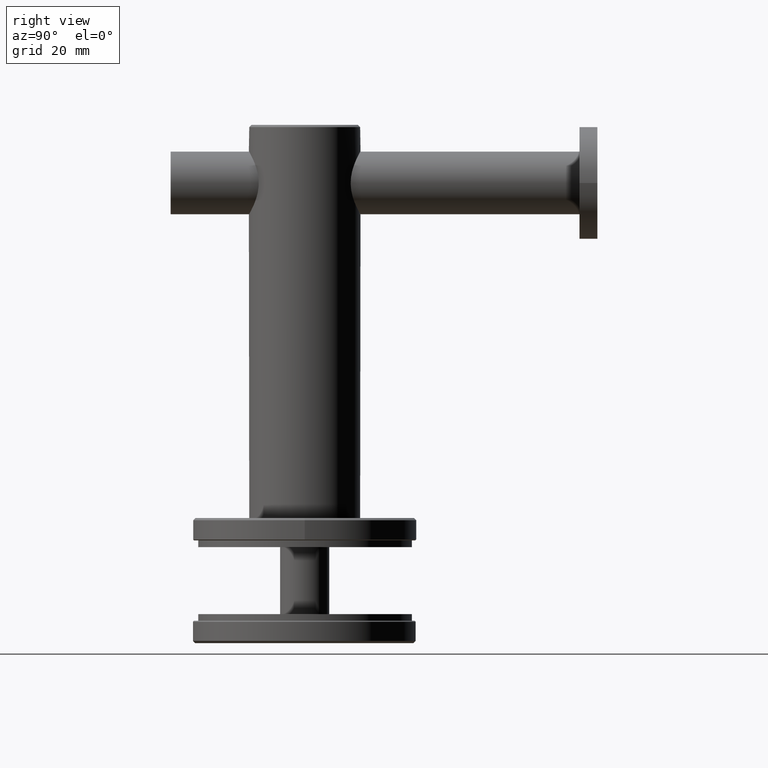
[diagram: clean part render]
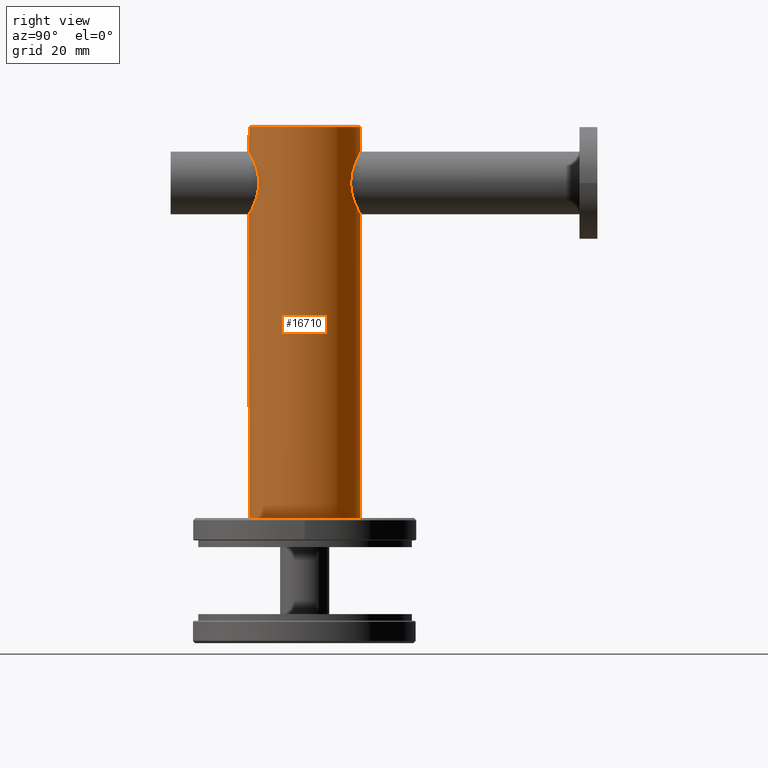
[diagram: same view with one face highlighted and labeled with its STEP entity id]
A machine part, right view. The second image highlights one B-rep face of the part: STEP entity #16710.
In plain terms, the highlighted cylindrical surface (bore or boss wall) has radius 12.5 mm, axis along (0, 0, -1).
Its self-contained STEP definition (entity closure, byte-faithful):
#28 = CARTESIAN_POINT ( 'NONE',  ( 3.184456486232198900, 12.09553283554605800, 86.36278829441432900 ) ) ;
#88 = CARTESIAN_POINT ( 'NONE',  ( -12.43578802701552600, 1.303998609354338100, 77.80885604804187500 ) ) ;
#129 = CARTESIAN_POINT ( 'NONE',  ( 3.169272846726294300, -12.09956292198341800, 73.62956972911712200 ) ) ;
#158 = CARTESIAN_POINT ( 'NONE',  ( -12.44824318700079900, 1.147204252107365500, 82.25440359961696400 ) ) ;
#163 = CARTESIAN_POINT ( 'NONE',  ( -1.853286471380417800, 12.37060092623068500, 73.12994769052774300 ) ) ;
#196 = CARTESIAN_POINT ( 'NONE',  ( -1.889983813216502100, -12.35839596780823000, 73.15212593721565800 ) ) ;
#223 = CARTESIAN_POINT ( 'NONE',  ( 6.460840631977733400, 10.70133156741372800, 77.04687974980271300 ) ) ;
#291 = CARTESIAN_POINT ( 'NONE',  ( 3.203955867126915700, 12.09038730092472500, 73.64696696464356800 ) ) ;
#298 = FACE_OUTER_BOUND ( 'NONE', #1793, .T. ) ;
#325 = CARTESIAN_POINT ( 'NONE',  ( 0.9563567616744069700, -12.46562845003936800, 87.03933869854878900 ) ) ;
#353 = CARTESIAN_POINT ( 'NONE',  ( -6.460839592141698300, 10.70133331722410100, 82.95314374847103500 ) ) ;
#417 = CARTESIAN_POINT ( 'NONE',  ( -6.859185124894941600, 10.45057995091122500, 78.10713310867888000 ) ) ;
#496 = VERTEX_POINT ( 'NONE', #5854 ) ;
#757 = VERTEX_POINT ( 'NONE', #1304 ) ;
#979 = ORIENTED_EDGE ( 'NONE', *, *, #18132, .F. ) ;
#1190 = CARTESIAN_POINT ( 'NONE',  ( -12.49652008926264600, -0.3384427619508525400, 82.49347104751193200 ) ) ;
#1262 = CARTESIAN_POINT ( 'NONE',  ( -12.31433411284287900, -2.146433170931300300, 78.60532221454907600 ) ) ;
#1304 = CARTESIAN_POINT ( 'NONE',  ( 0.0000000000000000000, -12.49999999999999500, 87.09999999999999400 ) ) ;
#1330 = CARTESIAN_POINT ( 'NONE',  ( -12.44835718420770700, -1.145758669755629200, 82.25498875822646000 ) ) ;
#1402 = CARTESIAN_POINT ( 'NONE',  ( -12.23046837691340200, -2.581790712145600100, 80.00150123447871000 ) ) ;
#1523 = CARTESIAN_POINT ( 'NONE',  ( -6.360965238899706400, -10.76253835036409600, 83.18740120694651800 ) ) ;
#1555 = CARTESIAN_POINT ( 'NONE',  ( -12.23401056673671600, 2.565178420134417900, 79.67113078207114500 ) ) ;
#1599 = CARTESIAN_POINT ( 'NONE',  ( 6.138928330866495000, -10.89252251643727800, 76.40402217390261800 ) ) ;
#1626 = CARTESIAN_POINT ( 'NONE',  ( -12.24777739071416100, 2.498620391668170600, 79.34686524170126600 ) ) ;
#1664 = CARTESIAN_POINT ( 'NONE',  ( -5.625106057332109400, -11.16396342920787900, 84.33819548883795400 ) ) ;
#1694 = CARTESIAN_POINT ( 'NONE',  ( -12.23048294247052500, 2.581721712141908500, 80.32833862261412600 ) ) ;
#1722 = AXIS2_PLACEMENT_3D ( 'NONE', #5611, #18393, #17145 ) ;
#1732 = CARTESIAN_POINT ( 'NONE',  ( -5.335835450798519700, -11.30507663162559200, 84.68941556034548100 ) ) ;
#1766 = CARTESIAN_POINT ( 'NONE',  ( -4.167489591241087000, 11.78650720189665800, 85.75274438239226500 ) ) ;
#1776 = VERTEX_POINT ( 'NONE', #16968 ) ;
#1793 = EDGE_LOOP ( 'NONE', ( #16243 ) ) ;
#1803 = CARTESIAN_POINT ( 'NONE',  ( 2.310420913900503400, -12.29250456500398400, 73.27031743588233300 ) ) ;
#1833 = CARTESIAN_POINT ( 'NONE',  ( -7.037625937007599800, 10.33066797645802700, 79.03146245814458800 ) ) ;
#1864 = CARTESIAN_POINT ( 'NONE',  ( 4.167489591241089600, -11.78650720189666100, 85.75274438239227900 ) ) ;
#1896 = CARTESIAN_POINT ( 'NONE',  ( -6.361636014312697500, 10.76083024765457300, 83.16111218485477300 ) ) ;
#1930 = CARTESIAN_POINT ( 'NONE',  ( 4.703235346696010800, -11.58298069406304400, 85.32372804176564800 ) ) ;
#1960 = CARTESIAN_POINT ( 'NONE',  ( -5.328153462786819000, 11.30871037991073000, 75.30182161819441000 ) ) ;
#2027 = CARTESIAN_POINT ( 'NONE',  ( -6.023856308707189900, 10.95372243787466000, 83.76503293258986100 ) ) ;
#2136 = CARTESIAN_POINT ( 'NONE',  ( 6.718676569906835800, -10.54116355741437700, 82.30751951410998400 ) ) ;
#2181 = B_SPLINE_CURVE_WITH_KNOTS ( 'NONE', 3,
 ( #15893, #4362, #1190, #20571, #9275, #7818, #14135, #1330, #14208, #20499, #4573, #12431, #12571, #15815, #12497, #10890, #19007, #9423, #11027, #20643, #14058, #1402, #4644, #9142, #20355, #6005, #2951, #6149, #12642, #3027, #1262, #17332, #6078, #7894, #14274, #17260, #7619, #17475, #10755, #18933, #2742, #18864, #7751, #15620, #17194, #20424, #18792, #10826, #2820, #4429, #7685, #11175, #88, #5001, #11243, #3307, #3372, #9707, #12930, #12713, #20780, #16036, #1626, #19088, #1555, #4797, #6435, #1694, #12858, #14560, #12997, #17688, #9769, #9566, #11373, #3236, #4935, #3163, #14491, #20716, #158, #3096, #12785, #16239, #4717 ),
 .UNSPECIFIED., .T., .F.,
 ( 4, 3, 3, 3, 3, 3, 3, 3, 3, 3, 3, 3, 3, 3, 3, 3, 3, 3, 3, 3, 3, 3, 3, 3, 3, 3, 3, 3, 4 ),
 ( 0.0000000000000000000, 0.03571428571428571200, 0.07142857142857142500, 0.1071428571428571400, 0.1428571428571428500, 0.1785714285714285800, 0.2142857142857142700, 0.2500000000000000000, 0.2857142857142857000, 0.3214285714285714500, 0.3571428571428571500, 0.3928571428571428500, 0.4285714285714285500, 0.4642857142857143000, 0.5000000000000000000, 0.5357142857142857000, 0.5714285714285714000, 0.6071428571428571000, 0.6428571428571429000, 0.6785714285714286000, 0.7142857142857143000, 0.7500000000000000000, 0.7857142857142857000, 0.8214285714285714000, 0.8571428571428571000, 0.8928571428571429000, 0.9285714285714286000, 0.9642857142857143000, 1.000000000000000000 ),
 .UNSPECIFIED. ) ;
#2440 = CARTESIAN_POINT ( 'NONE',  ( -12.50000000000000000, 0.0000000000000000000, 92.49999999999992900 ) ) ;
#2446 = ORIENTED_EDGE ( 'NONE', *, *, #15760, .F. ) ;
#2742 = CARTESIAN_POINT ( 'NONE',  ( -12.47310918696619600, -0.8342181446663503600, 77.61927697057785700 ) ) ;
#2820 = CARTESIAN_POINT ( 'NONE',  ( -12.48971849393115700, 0.5068845453888349800, 77.53913938316971200 ) ) ;
#2951 = CARTESIAN_POINT ( 'NONE',  ( -12.25771000552910000, -2.450085953040250800, 79.19168423599231200 ) ) ;
#3027 = CARTESIAN_POINT ( 'NONE',  ( -12.29805507851957800, -2.239827864232924300, 78.74114934669363200 ) ) ;
#3030 = CARTESIAN_POINT ( 'NONE',  ( 4.704088486941905100, 11.58634715858313200, 85.33724871396501000 ) ) ;
#3096 = CARTESIAN_POINT ( 'NONE',  ( -12.46072599656021800, 0.9901048624506362300, 82.31782010406990900 ) ) ;
#3138 = CARTESIAN_POINT ( 'NONE',  ( -6.868284871124011200, -10.44457344749546500, 78.14038418871585600 ) ) ;
#3163 = CARTESIAN_POINT ( 'NONE',  ( -12.40127992458766700, 1.574179696255175700, 81.99592039492698300 ) ) ;
#3206 = CARTESIAN_POINT ( 'NONE',  ( -5.762524363847187900, -11.09342687341460000, 84.15394023452493900 ) ) ;
#3236 = CARTESIAN_POINT ( 'NONE',  ( -12.36594733669262100, 1.825745454915521400, 81.77449007377433100 ) ) ;
#3307 = CARTESIAN_POINT ( 'NONE',  ( -12.34819437726394000, 1.945941703955530900, 78.34245214326334400 ) ) ;
#3314 = CARTESIAN_POINT ( 'NONE',  ( 0.4800627823512708700, 12.50000000000000900, 87.09999999999998000 ) ) ;
#3348 = CARTESIAN_POINT ( 'NONE',  ( -5.355958186748809500, -11.29981148896228900, 75.31711136074473200 ) ) ;
#3372 = CARTESIAN_POINT ( 'NONE',  ( -12.33066589463391700, 2.052733168493389400, 78.46907425830478600 ) ) ;
#3375 = CARTESIAN_POINT ( 'NONE',  ( -7.099407664463041300, 10.28826570890215400, 79.74334127595248800 ) ) ;
#3411 = CARTESIAN_POINT ( 'NONE',  ( 6.859185124894938000, -10.45057995091122300, 78.10713310867888000 ) ) ;
#3441 = CARTESIAN_POINT ( 'NONE',  ( -3.600675860934234000, 11.97681173761797200, 86.13622710087231800 ) ) ;
#3475 = CARTESIAN_POINT ( 'NONE',  ( 5.641618946878534000, -11.15821024869228100, 84.33490563956949900 ) ) ;
#3512 = CARTESIAN_POINT ( 'NONE',  ( -1.880117477014193300, 12.35990056820642600, 86.85058647304826700 ) ) ;
#3580 = CARTESIAN_POINT ( 'NONE',  ( -3.575190798629518200, 11.98464729610662300, 73.84842911643902100 ) ) ;
#3617 = CARTESIAN_POINT ( 'NONE',  ( 6.023856308707191700, -10.95372243787465800, 83.76503293258987500 ) ) ;
#3646 = CARTESIAN_POINT ( 'NONE',  ( 5.355958186748810400, 11.29981148896229300, 75.31711136074470400 ) ) ;
#4362 = CARTESIAN_POINT ( 'NONE',  ( -12.50000000000000000, -0.1698553404806654500, 82.50970459479894700 ) ) ;
#4429 = CARTESIAN_POINT ( 'NONE',  ( -12.48300670525219900, 0.6722641213761312300, 77.57132909091399100 ) ) ;
#4569 = FACE_BOUND ( 'NONE', #14663, .T. ) ;
#4573 = CARTESIAN_POINT ( 'NONE',  ( -12.40109778863534400, -1.575730510538300200, 81.99489648532240000 ) ) ;
#4644 = CARTESIAN_POINT ( 'NONE',  ( -12.23043949217223800, -2.581927545046774200, 79.83666403690625700 ) ) ;
#4649 = CARTESIAN_POINT ( 'NONE',  ( 7.100939746325477300, 10.28720837068595800, 79.53372672903482500 ) ) ;
#4717 = CARTESIAN_POINT ( 'NONE',  ( -12.50000000000000000, -3.061616997868382300E-015, 82.50970509121609100 ) ) ;
#4762 = CARTESIAN_POINT ( 'NONE',  ( 4.693911986042605700, -11.59050969572359200, 74.65372349926248300 ) ) ;
#4797 = CARTESIAN_POINT ( 'NONE',  ( -12.23046101903848800, 2.581825567894134200, 79.83740140945408800 ) ) ;
#4839 = CARTESIAN_POINT ( 'NONE',  ( 7.001530568193297600, -10.35528030401141400, 78.79837147415904000 ) ) ;
#4848 = FACE_BOUND ( 'NONE', #6240, .T. ) ;
#4906 = CARTESIAN_POINT ( 'NONE',  ( -4.716523181865119900, -11.58129685567271300, 74.67363696498289000 ) ) ;
#4935 = CARTESIAN_POINT ( 'NONE',  ( -12.38358244671581500, 1.706301180119997400, 81.89062154024748000 ) ) ;
#4973 = CARTESIAN_POINT ( 'NONE',  ( 4.342869847070072200, -11.72830940716055200, 74.36410654168391000 ) ) ;
#5001 = CARTESIAN_POINT ( 'NONE',  ( -12.40114792061166900, 1.587420620583437100, 77.99363649983639800 ) ) ;
#5005 = CARTESIAN_POINT ( 'NONE',  ( -6.143396690811448100, 10.88689843328966600, 83.56675204116639600 ) ) ;
#5039 = CARTESIAN_POINT ( 'NONE',  ( -6.025128862940238000, -10.95302243981158300, 76.23699854062238000 ) ) ;
#5079 = CARTESIAN_POINT ( 'NONE',  ( 1.889983813216502100, 12.35839596780823300, 73.15212593721565800 ) ) ;
#5145 = CARTESIAN_POINT ( 'NONE',  ( -7.101124007438878400, 10.28708120721371300, 80.46248176011639000 ) ) ;
#5214 = CARTESIAN_POINT ( 'NONE',  ( -6.356607340930143100, 10.76513610372195600, 76.80371625946746400 ) ) ;
#5283 = CARTESIAN_POINT ( 'NONE',  ( -3.169272846726296500, 12.09956292198342500, 73.62956972911710800 ) ) ;
#5324 = CARTESIAN_POINT ( 'NONE',  ( 6.143396690811446300, -10.88689843328965900, 83.56675204116636700 ) ) ;
#5611 = CARTESIAN_POINT ( 'NONE',  ( 0.0000000000000000000, 0.0000000000000000000, 92.49999999999992900 ) ) ;
#5854 = CARTESIAN_POINT ( 'NONE',  ( 12.50000000000000000, 0.0000000000000000000, 5.000000000000004400 ) ) ;
#6005 = CARTESIAN_POINT ( 'NONE',  ( -12.24769068202353300, -2.499040709645794900, 79.34873603921143100 ) ) ;
#6078 = CARTESIAN_POINT ( 'NONE',  ( -12.34833964361937600, -1.944999238366209800, 78.34145907401415300 ) ) ;
#6149 = CARTESIAN_POINT ( 'NONE',  ( -12.27033213451113100, -2.385151841871611600, 79.03931421654246500 ) ) ;
#6240 = EDGE_LOOP ( 'NONE', ( #13626 ) ) ;
#6291 = CARTESIAN_POINT ( 'NONE',  ( 6.360965238899708200, 10.76253835036409800, 83.18740120694651800 ) ) ;
#6370 = EDGE_CURVE ( 'NONE', #1776, #1776, #2181, .T. ) ;
#6374 = CARTESIAN_POINT ( 'NONE',  ( 3.588686174087187400, 11.98054828353597000, 86.14357688401587200 ) ) ;
#6410 = CARTESIAN_POINT ( 'NONE',  ( -5.642930842882246400, -11.15754655068283600, 75.66678379310434400 ) ) ;
#6435 = CARTESIAN_POINT ( 'NONE',  ( -12.23046832684916700, 2.581790949310058800, 80.00104714717409100 ) ) ;
#6476 = CARTESIAN_POINT ( 'NONE',  ( 7.086570340510783200, -10.29715497009005700, 79.50324592782914100 ) ) ;
#6495 = DIRECTION ( 'NONE',  ( 0.0000000000000000000, 0.0000000000000000000, 1.000000000000000000 ) ) ;
#6539 = CARTESIAN_POINT ( 'NONE',  ( -3.203955867126916600, -12.09038730092472300, 73.64696696464361000 ) ) ;
#6572 = CARTESIAN_POINT ( 'NONE',  ( -5.354227270072692900, 11.30066879763865200, 84.68499769419686600 ) ) ;
#6613 = CARTESIAN_POINT ( 'NONE',  ( -4.704088486941909500, -11.58634715858313100, 85.33724871396499600 ) ) ;
#6644 = CARTESIAN_POINT ( 'NONE',  ( 6.025128862940238000, 10.95302243981158900, 76.23699854062239500 ) ) ;
#6672 = EDGE_CURVE ( 'NONE', #6821, #6821, #15155, .T. ) ;
#6677 = CARTESIAN_POINT ( 'NONE',  ( -3.588686174087189200, -11.98054828353597200, 86.14357688401588600 ) ) ;
#6710 = CARTESIAN_POINT ( 'NONE',  ( -2.552512006404772400, 12.23860169328429000, 86.62942539281218000 ) ) ;
#6773 = CARTESIAN_POINT ( 'NONE',  ( 3.605539113816680400, 11.97534002329462400, 73.86663764570010900 ) ) ;
#6812 = CARTESIAN_POINT ( 'NONE',  ( 6.856596184691691900, -10.45197745669437200, 81.85805003137291200 ) ) ;
#6821 = VERTEX_POINT ( 'NONE', #2440 ) ;
#6851 = CARTESIAN_POINT ( 'NONE',  ( 4.716523181865117200, 11.58129685567271500, 74.67363696498284800 ) ) ;
#6955 = CARTESIAN_POINT ( 'NONE',  ( 6.915009424120476900, -10.41324950567328300, 81.62736897290308500 ) ) ;
#7619 = CARTESIAN_POINT ( 'NONE',  ( -12.41716814065016700, -1.436640305303482000, 77.91473517731044800 ) ) ;
#7685 = CARTESIAN_POINT ( 'NONE',  ( -12.47321102047029800, 0.8329561184921378000, 77.61876034139868400 ) ) ;
#7721 = B_SPLINE_CURVE_WITH_KNOTS ( 'NONE', 3,
 ( #15967, #3314, #9427, #20785, #19232, #28, #6374, #17691, #3030, #14354, #14280, #8111, #20720, #19164, #6291, #9570, #9640, #11247, #20650, #4649, #17482, #14565, #7823, #223, #11445, #8435, #6644, #13276, #3646, #6851, #8243, #6773, #291, #11507, #19371, #5079, #13211, #19434, #9774, #9847, #14832, #163, #8180, #5283, #3580, #10034, #17821, #19498, #1960, #19635, #9905, #17888, #5214, #11581, #417, #16438, #1833, #16244, #3375, #5145, #18013, #14639, #8375, #13144, #11649, #353, #1896, #5005, #2027, #14905, #6572, #17756, #13069, #11379, #1766, #3441, #14701, #6710, #13001, #3512, #16305, #17952, #8308, #14766, #16376, #19566 ),
 .UNSPECIFIED., .T., .F.,
 ( 4, 2, 2, 2, 2, 2, 2, 2, 2, 2, 2, 2, 2, 2, 2, 2, 2, 2, 2, 2, 2, 2, 2, 2, 2, 2, 2, 2, 2, 2, 2, 2, 2, 2, 2, 2, 2, 2, 2, 2, 2, 2, 4 ),
 ( 0.0000000000000000000, 0.001417821200762001300, 0.002835642401524002600, 0.004253463602286003900, 0.005671284803048006100, 0.006380195403429008900, 0.007089106003810008300, 0.008506927204572009600, 0.009924748405334008300, 0.01134256960609600900, 0.01276039080685800900, 0.01417821200762001000, 0.01488712260800102500, 0.01559603320838204300, 0.01701385440914408200, 0.01843167560990611700, 0.01984949681066815200, 0.02055840741104917800, 0.02126731801143020400, 0.02268513921219226700, 0.02410296041295432700, 0.02552078161371639300, 0.02693860281447845200, 0.02835642401524051200, 0.02906533461562153100, 0.02977424521600254700, 0.03119206641676460600, 0.03260988761752667300, 0.03331879821790768200, 0.03402770881828869100, 0.03544553001905066700, 0.03615444061943166200, 0.03686335121981265700, 0.03757226182019364500, 0.03828117242057463300, 0.03969899362133665100, 0.04040790422171763900, 0.04111681482209863400, 0.04253463602286063800, 0.04324354662324163300, 0.04395245722362262800, 0.04466136782400362300, 0.04537027842438462500 ),
 .UNSPECIFIED. ) ;
#7751 = CARTESIAN_POINT ( 'NONE',  ( -12.48971542772271600, -0.5069600916296646000, 77.53915408839603200 ) ) ;
#7818 = CARTESIAN_POINT ( 'NONE',  ( -12.47308385892750200, -0.8345888587190610800, 82.38059582327395000 ) ) ;
#7823 = CARTESIAN_POINT ( 'NONE',  ( 6.728327433932026500, 10.53676638689296600, 77.68631603766708300 ) ) ;
#7852 = FACE_BOUND ( 'NONE', #8262, .T. ) ;
#7894 = CARTESIAN_POINT ( 'NONE',  ( -12.36593672880062800, -1.825817301730822800, 78.22557978073224700 ) ) ;
#7996 = DIRECTION ( 'NONE',  ( 0.0000000000000000000, 0.0000000000000000000, -1.000000000000000000 ) ) ;
#8004 = CARTESIAN_POINT ( 'NONE',  ( 5.756534759608706900, -11.09653907833739300, 75.83776719106902000 ) ) ;
#8075 = CARTESIAN_POINT ( 'NONE',  ( 5.618916498746309600, -11.16709125779064800, 75.65375140950391100 ) ) ;
#8111 = CARTESIAN_POINT ( 'NONE',  ( 5.625106057332099700, 11.16396342920788200, 84.33819548883796800 ) ) ;
#8147 = CARTESIAN_POINT ( 'NONE',  ( -1.662763347459026900, -12.39107304167199400, 73.09346473338199200 ) ) ;
#8180 = CARTESIAN_POINT ( 'NONE',  ( -2.310420913900503900, 12.29250456500398600, 73.27031743588234700 ) ) ;
#8211 = CARTESIAN_POINT ( 'NONE',  ( -2.328163915045303100, -12.28911430792146800, 86.72350286509373500 ) ) ;
#8243 = CARTESIAN_POINT ( 'NONE',  ( 4.360704997454968500, 11.72147315400053800, 74.37840787716004300 ) ) ;
#8262 = EDGE_LOOP ( 'NONE', ( #2446 ) ) ;
#8275 = CARTESIAN_POINT ( 'NONE',  ( -6.144291566700927900, -10.88638881761785300, 76.43483257053729600 ) ) ;
#8308 = CARTESIAN_POINT ( 'NONE',  ( -0.9563567616744034200, 12.46562845003937300, 87.03933869854881800 ) ) ;
#8375 = CARTESIAN_POINT ( 'NONE',  ( -6.856596184691688300, 10.45197745669436900, 81.85805003137291200 ) ) ;
#8407 = CARTESIAN_POINT ( 'NONE',  ( 4.350185171942295700, -11.72014306462431100, 85.61590526619762900 ) ) ;
#8435 = CARTESIAN_POINT ( 'NONE',  ( 6.144291566700926100, 10.88638881761785400, 76.43483257053731000 ) ) ;
#8471 = CARTESIAN_POINT ( 'NONE',  ( 0.4817035191452519500, -12.49297693224775000, 87.08765612089989400 ) ) ;
#8534 = CARTESIAN_POINT ( 'NONE',  ( -3.523657060577889400E-016, -12.49999999999999300, 87.10000000000000900 ) ) ;
#8826 = AXIS2_PLACEMENT_3D ( 'NONE', #12679, #7996, #12960 ) ;
#9105 = CYLINDRICAL_SURFACE ( 'NONE', #8826, 12.50000000000000000 ) ;
#9142 = CARTESIAN_POINT ( 'NONE',  ( -12.23406338028477500, -2.564921971165615000, 79.67005880080050400 ) ) ;
#9275 = CARTESIAN_POINT ( 'NONE',  ( -12.48312508354058000, -0.6701835518287474500, 82.42924852016827200 ) ) ;
#9423 = CARTESIAN_POINT ( 'NONE',  ( -12.24772887271964100, -2.498855731869680700, 80.65215447260474900 ) ) ;
#9427 = CARTESIAN_POINT ( 'NONE',  ( 0.9502310381377845300, 12.47246097537638400, 87.05182805586086700 ) ) ;
#9566 = CARTESIAN_POINT ( 'NONE',  ( -12.33084546499923600, 2.051659724572331400, 81.53228461640625800 ) ) ;
#9570 = CARTESIAN_POINT ( 'NONE',  ( 6.718937078870830200, 10.54276979942761500, 82.34036103084744700 ) ) ;
#9611 = CARTESIAN_POINT ( 'NONE',  ( 0.4559300718457330300, -12.50090470285381400, 72.89840720695660500 ) ) ;
#9640 = CARTESIAN_POINT ( 'NONE',  ( 6.860853880118836100, 10.44947904693423300, 81.88678518319302700 ) ) ;
#9678 = CARTESIAN_POINT ( 'NONE',  ( 7.101124007438881900, -10.28708120721371700, 80.46248176011640400 ) ) ;
#9707 = CARTESIAN_POINT ( 'NONE',  ( -12.31434454340082900, 2.146373328760461200, 78.60523519148230800 ) ) ;
#9742 = CARTESIAN_POINT ( 'NONE',  ( 0.9286070184467023500, -12.47413832801099400, 72.94521591505608200 ) ) ;
#9769 = CARTESIAN_POINT ( 'NONE',  ( -12.31451094670359400, 2.145418407564679600, 81.39615240240594600 ) ) ;
#9774 = CARTESIAN_POINT ( 'NONE',  ( 0.5042569077676455300, 12.49904858744114800, 72.90167502860092000 ) ) ;
#9810 = CARTESIAN_POINT ( 'NONE',  ( -6.144214611907535200, -10.88952956567641000, 83.58695593317949600 ) ) ;
#9847 = CARTESIAN_POINT ( 'NONE',  ( -0.4559300718457330900, 12.50090470285381800, 72.89840720695659100 ) ) ;
#9905 = CARTESIAN_POINT ( 'NONE',  ( -5.756534759608702400, 11.09653907833739200, 75.83776719106900500 ) ) ;
#10004 = CARTESIAN_POINT ( 'NONE',  ( 6.639358407684966300, -10.59150144861526900, 82.52634640713077400 ) ) ;
#10034 = CARTESIAN_POINT ( 'NONE',  ( -4.342869847070072200, 11.72830940716054800, 74.36410654168396700 ) ) ;
#10142 = CARTESIAN_POINT ( 'NONE',  ( 6.361636014312694900, -10.76083024765457300, 83.16111218485477300 ) ) ;
#10755 = CARTESIAN_POINT ( 'NONE',  ( -12.44838401979571800, -1.145472827510862100, 77.74487345905919300 ) ) ;
#10826 = CARTESIAN_POINT ( 'NONE',  ( -12.49643028261011300, 0.3415049694015387900, 77.50694967542543200 ) ) ;
#10890 = CARTESIAN_POINT ( 'NONE',  ( -12.27048429038587300, -2.384368947833684700, 80.96252044110579500 ) ) ;
#11027 = CARTESIAN_POINT ( 'NONE',  ( -12.24088225871738300, -2.531956067592420600, 80.49072581404146800 ) ) ;
#11151 = CARTESIAN_POINT ( 'NONE',  ( -7.100939746325477300, -10.28720837068595800, 79.53372672903482500 ) ) ;
#11175 = CARTESIAN_POINT ( 'NONE',  ( -12.46073668931870800, 0.9899702821128711900, 77.68212557694641900 ) ) ;
#11218 = CARTESIAN_POINT ( 'NONE',  ( -4.352464271525047200, -11.72468594015717100, 85.62834435256026200 ) ) ;
#11243 = CARTESIAN_POINT ( 'NONE',  ( -12.36584555837984900, 1.826434676164832900, 78.22618026212101900 ) ) ;
#11247 = CARTESIAN_POINT ( 'NONE',  ( 7.049804425350002300, 10.32294463227303900, 80.96515897974055100 ) ) ;
#11281 = CARTESIAN_POINT ( 'NONE',  ( -0.9502310381377858700, -12.47246097537638400, 87.05182805586086700 ) ) ;
#11332 = CIRCLE ( 'NONE', #15422, 12.50000000000000000 ) ;
#11373 = CARTESIAN_POINT ( 'NONE',  ( -12.34831222666942600, 1.945189729711045400, 81.65835860730116700 ) ) ;
#11379 = CARTESIAN_POINT ( 'NONE',  ( -4.350185171942293000, 11.72014306462431000, 85.61590526619761500 ) ) ;
#11412 = CARTESIAN_POINT ( 'NONE',  ( -2.561768883189977400, -12.23664740688127700, 73.37418452748443100 ) ) ;
#11445 = CARTESIAN_POINT ( 'NONE',  ( 6.361835953135452500, 10.76070739544479300, 76.83933852459222200 ) ) ;
#11507 = CARTESIAN_POINT ( 'NONE',  ( 2.561768883189979200, 12.23664740688127500, 73.37418452748443100 ) ) ;
#11581 = CARTESIAN_POINT ( 'NONE',  ( -6.716677798686967000, 10.54423309525403600, 77.65288986509251900 ) ) ;
#11649 = CARTESIAN_POINT ( 'NONE',  ( -6.639358407684963700, 10.59150144861526100, 82.52634640713076000 ) ) ;
#11682 = CARTESIAN_POINT ( 'NONE',  ( 2.329605151280716800, -12.28311538749230200, 86.71105927489931300 ) ) ;
#12431 = CARTESIAN_POINT ( 'NONE',  ( -12.38346383625171800, -1.707111763978115300, 81.88983859998589300 ) ) ;
#12497 = CARTESIAN_POINT ( 'NONE',  ( -12.29563780309713300, -2.254923467992178100, 81.26551305619401000 ) ) ;
#12571 = CARTESIAN_POINT ( 'NONE',  ( -12.36593127962770000, -1.825854207631398600, 81.77438433462818100 ) ) ;
#12642 = CARTESIAN_POINT ( 'NONE',  ( -12.28295426349316300, -2.320217730702971900, 78.88694419709261800 ) ) ;
#12679 = CARTESIAN_POINT ( 'NONE',  ( 0.0000000000000000000, 0.0000000000000000000, 93.00000000000000000 ) ) ;
#12713 = CARTESIAN_POINT ( 'NONE',  ( -12.28287413168945400, 2.320631910706028900, 78.88792521150956800 ) ) ;
#12757 = CARTESIAN_POINT ( 'NONE',  ( -6.718937078870830200, -10.54276979942761200, 82.34036103084744700 ) ) ;
#12785 = CARTESIAN_POINT ( 'NONE',  ( -12.48569161567905400, 0.6759060831371772600, 82.44465311297575700 ) ) ;
#12828 = CARTESIAN_POINT ( 'NONE',  ( -7.053651354597871400, -10.32029331651082200, 79.06324464011741800 ) ) ;
#12858 = CARTESIAN_POINT ( 'NONE',  ( -12.24537138849704100, 2.513600284225936000, 80.65991892068322500 ) ) ;
#12901 = CARTESIAN_POINT ( 'NONE',  ( -7.049804425350002300, -10.32294463227304100, 80.96515897974057900 ) ) ;
#12930 = CARTESIAN_POINT ( 'NONE',  ( -12.29802319216774200, 2.240013489027532900, 78.74139612465984300 ) ) ;
#12960 = DIRECTION ( 'NONE',  ( -1.000000000000000000, 0.0000000000000000000, 0.0000000000000000000 ) ) ;
#12968 = CARTESIAN_POINT ( 'NONE',  ( -6.860853880118836100, -10.44947904693423100, 81.88678518319302700 ) ) ;
#12997 = CARTESIAN_POINT ( 'NONE',  ( -12.28301403660254800, 2.319890705269426900, 81.11349947163252200 ) ) ;
#13001 = CARTESIAN_POINT ( 'NONE',  ( -2.329605151280716800, 12.28311538749230200, 86.71105927489931300 ) ) ;
#13038 = CARTESIAN_POINT ( 'NONE',  ( 5.175251503206552300, -11.37969477022132700, 75.13398084494915000 ) ) ;
#13069 = CARTESIAN_POINT ( 'NONE',  ( -4.703235346696010000, 11.58298069406303900, 85.32372804176566200 ) ) ;
#13111 = CARTESIAN_POINT ( 'NONE',  ( 3.600675860934234000, -11.97681173761797200, 86.13622710087233300 ) ) ;
#13144 = CARTESIAN_POINT ( 'NONE',  ( -6.718676569906834900, 10.54116355741437700, 82.30751951410997000 ) ) ;
#13177 = CARTESIAN_POINT ( 'NONE',  ( 2.552512006404772400, -12.23860169328429000, 86.62942539281218000 ) ) ;
#13211 = CARTESIAN_POINT ( 'NONE',  ( 1.662763347459024000, 12.39107304167199600, 73.09346473338197800 ) ) ;
#13276 = CARTESIAN_POINT ( 'NONE',  ( 5.642930842882249100, 11.15754655068284000, 75.66678379310440100 ) ) ;
#13626 = ORIENTED_EDGE ( 'NONE', *, *, #6370, .T. ) ;
#14058 = CARTESIAN_POINT ( 'NONE',  ( -12.23049726165456400, -2.581653879244425900, 80.16633843205114800 ) ) ;
#14135 = CARTESIAN_POINT ( 'NONE',  ( -12.46072052156760500, -0.9901737642373450400, 82.31779229075020500 ) ) ;
#14208 = CARTESIAN_POINT ( 'NONE',  ( -12.43368545268307200, -1.293684300312520500, 82.17814739697726600 ) ) ;
#14274 = CARTESIAN_POINT ( 'NONE',  ( -12.38353381398188100, -1.706635365095435800, 78.10970048745034000 ) ) ;
#14280 = CARTESIAN_POINT ( 'NONE',  ( 5.335835450798510000, 11.30507663162559800, 84.68941556034549500 ) ) ;
#14354 = CARTESIAN_POINT ( 'NONE',  ( 5.183621414992734000, 11.37587540671378300, 84.85708113046858600 ) ) ;
#14395 = CARTESIAN_POINT ( 'NONE',  ( -4.360704997454967600, -11.72147315400054200, 74.37840787716005800 ) ) ;
#14463 = CARTESIAN_POINT ( 'NONE',  ( 6.356607340930142200, -10.76513610372195400, 76.80371625946746400 ) ) ;
#14491 = CARTESIAN_POINT ( 'NONE',  ( -12.41742158304677800, 1.434448057227614400, 82.08669042954309700 ) ) ;
#14531 = CARTESIAN_POINT ( 'NONE',  ( -6.728327433932022900, -10.53676638689296600, 77.68631603766704100 ) ) ;
#14560 = CARTESIAN_POINT ( 'NONE',  ( -12.27046648723404600, 2.384460564921596400, 80.96230595464940900 ) ) ;
#14565 = CARTESIAN_POINT ( 'NONE',  ( 6.868284871124011200, 10.44457344749546500, 78.14038418871585600 ) ) ;
#14601 = CARTESIAN_POINT ( 'NONE',  ( 3.575190798629522600, -11.98464729610662800, 73.84842911643905000 ) ) ;
#14639 = CARTESIAN_POINT ( 'NONE',  ( -6.915009424120472500, 10.41324950567328100, 81.62736897290307100 ) ) ;
#14663 = EDGE_LOOP ( 'NONE', ( #979 ) ) ;
#14669 = CARTESIAN_POINT ( 'NONE',  ( 1.853286471380416900, -12.37060092623069200, 73.12994769052775700 ) ) ;
#14701 = CARTESIAN_POINT ( 'NONE',  ( -3.198048903789800800, 12.09203204625984400, 86.35616846345202200 ) ) ;
#14736 = CARTESIAN_POINT ( 'NONE',  ( 1.652301775859467600, -12.39249494266610600, 86.90908524717154600 ) ) ;
#14766 = CARTESIAN_POINT ( 'NONE',  ( -0.4817035191452535600, 12.49297693224775000, 87.08765612089992200 ) ) ;
#14832 = CARTESIAN_POINT ( 'NONE',  ( -0.9286070184467031300, 12.47413832801099100, 72.94521591505606800 ) ) ;
#14905 = CARTESIAN_POINT ( 'NONE',  ( -5.641618946878540300, 11.15821024869227400, 84.33490563956949900 ) ) ;
#14942 = CARTESIAN_POINT ( 'NONE',  ( 3.198048903789800800, -12.09203204625984400, 86.35616846345202200 ) ) ;
#15155 = CIRCLE ( 'NONE', #1722, 12.50000000000000000 ) ;
#15422 = AXIS2_PLACEMENT_3D ( 'NONE', #17535, #6495, #19357 ) ;
#15517 = EDGE_LOOP ( 'NONE', ( #16045 ) ) ;
#15620 = CARTESIAN_POINT ( 'NONE',  ( -12.49650100114174800, -0.3397874040416194500, 77.50660785911752300 ) ) ;
#15760 = EDGE_CURVE ( 'NONE', #18059, #18059, #7721, .T. ) ;
#15815 = CARTESIAN_POINT ( 'NONE',  ( -12.33086616637966400, -2.063339094937965500, 81.54347580391274200 ) ) ;
#15893 = CARTESIAN_POINT ( 'NONE',  ( -12.50000000000000000, -3.061616997868382300E-015, 82.50970509121609100 ) ) ;
#15967 = CARTESIAN_POINT ( 'NONE',  ( 1.626303258728256700E-016, 12.50000000000000900, 87.09999999999999400 ) ) ;
#16010 = CARTESIAN_POINT ( 'NONE',  ( -1.872139394921788600, -12.36771263791769500, 86.86486067165593300 ) ) ;
#16036 = CARTESIAN_POINT ( 'NONE',  ( -12.25776322044042400, 2.449810243984445800, 79.19102811394681400 ) ) ;
#16045 = ORIENTED_EDGE ( 'NONE', *, *, #6672, .T. ) ;
#16075 = CARTESIAN_POINT ( 'NONE',  ( 5.328153462786819000, -11.30871037991072600, 75.30182161819438100 ) ) ;
#16145 = CARTESIAN_POINT ( 'NONE',  ( -3.605539113816680800, -11.97534002329462800, 73.86663764570012300 ) ) ;
#16213 = CARTESIAN_POINT ( 'NONE',  ( -0.4800627823512705300, -12.49999999999999600, 87.09999999999998000 ) ) ;
#16239 = CARTESIAN_POINT ( 'NONE',  ( -12.50000000000000000, 0.3402560415695205000, 82.50970608564425400 ) ) ;
#16243 = ORIENTED_EDGE ( 'NONE', *, *, #17606, .T. ) ;
#16244 = CARTESIAN_POINT ( 'NONE',  ( -7.086570340510785800, 10.29715497009006100, 79.50324592782914100 ) ) ;
#16276 = CARTESIAN_POINT ( 'NONE',  ( -6.361835953135453400, -10.76070739544479300, 76.83933852459222200 ) ) ;
#16305 = CARTESIAN_POINT ( 'NONE',  ( -1.652301775859467400, 12.39249494266610100, 86.90908524717156100 ) ) ;
#16376 = CARTESIAN_POINT ( 'NONE',  ( -0.2400313911756351600, 12.50000000000000900, 87.09999999999999400 ) ) ;
#16410 = CARTESIAN_POINT ( 'NONE',  ( 4.872955847900103200, -11.51238539737940400, 85.16875609484240800 ) ) ;
#16438 = CARTESIAN_POINT ( 'NONE',  ( -7.001530568193298400, 10.35528030401141600, 78.79837147415901200 ) ) ;
#16472 = CARTESIAN_POINT ( 'NONE',  ( 6.460839592141696600, -10.70133331722410500, 82.95314374847106400 ) ) ;
#16534 = CARTESIAN_POINT ( 'NONE',  ( 1.880117477014193300, -12.35990056820642600, 86.85058647304826700 ) ) ;
#16710 = ADVANCED_FACE ( 'NONE', ( #17365, #4848, #4569, #7852, #298 ), #9105, .T. ) ;
#16968 = CARTESIAN_POINT ( 'NONE',  ( -12.50000000000000000, -3.061616997868382300E-015, 82.50970509121609100 ) ) ;
#17145 = DIRECTION ( 'NONE',  ( -1.000000000000000000, 0.0000000000000000000, 0.0000000000000000000 ) ) ;
#17194 = CARTESIAN_POINT ( 'NONE',  ( -12.50000000000000000, -0.1700820020573731400, 77.49029503976389300 ) ) ;
#17260 = CARTESIAN_POINT ( 'NONE',  ( -12.40093318555858000, -1.576962253938744700, 78.00609003087140500 ) ) ;
#17299 = CARTESIAN_POINT ( 'NONE',  ( 0.0000000000000000000, 12.50000000000000900, 87.09999999999999400 ) ) ;
#17332 = CARTESIAN_POINT ( 'NONE',  ( -12.33061314716617900, -2.053038477629675700, 78.46949508240453500 ) ) ;
#17365 = FACE_OUTER_BOUND ( 'NONE', #15517, .T. ) ;
#17475 = CARTESIAN_POINT ( 'NONE',  ( -12.43340309574175600, -1.296318356668219300, 77.82338032374949000 ) ) ;
#17482 = CARTESIAN_POINT ( 'NONE',  ( 7.053651354597871400, 10.32029331651082200, 79.06324464011741800 ) ) ;
#17535 = CARTESIAN_POINT ( 'NONE',  ( 0.0000000000000000000, 0.0000000000000000000, 5.000000000000004400 ) ) ;
#17588 = CARTESIAN_POINT ( 'NONE',  ( -0.5042569077676458700, -12.49904858744115200, 72.90167502860092000 ) ) ;
#17606 = EDGE_CURVE ( 'NONE', #496, #496, #11332, .T. ) ;
#17662 = CARTESIAN_POINT ( 'NONE',  ( 7.099407664463043100, -10.28826570890215900, 79.74334127595248800 ) ) ;
#17688 = CARTESIAN_POINT ( 'NONE',  ( -12.29817642840795400, 2.239177090557027800, 81.26002018840563300 ) ) ;
#17691 = CARTESIAN_POINT ( 'NONE',  ( 4.352464271525046300, 11.72468594015717100, 85.62834435256026200 ) ) ;
#17725 = CARTESIAN_POINT ( 'NONE',  ( -2.339435591207807100, -12.28124712014009600, 73.29235815591162900 ) ) ;
#17756 = CARTESIAN_POINT ( 'NONE',  ( -4.872955847900104900, 11.51238539737940100, 85.16875609484242200 ) ) ;
#17788 = CARTESIAN_POINT ( 'NONE',  ( 6.716677798686966100, -10.54423309525403800, 77.65288986509250400 ) ) ;
#17821 = CARTESIAN_POINT ( 'NONE',  ( -4.693911986042607500, 11.59050969572359500, 74.65372349926244100 ) ) ;
#17856 = CARTESIAN_POINT ( 'NONE',  ( -3.184456486232202000, -12.09553283554605900, 86.36278829441434400 ) ) ;
#17888 = CARTESIAN_POINT ( 'NONE',  ( -6.138928330866495900, 10.89252251643727700, 76.40402217390263200 ) ) ;
#17920 = CARTESIAN_POINT ( 'NONE',  ( 1.190421084666685800, -12.44535775715966400, 87.00346041270835000 ) ) ;
#17952 = CARTESIAN_POINT ( 'NONE',  ( -1.190421084666685800, 12.44535775715966800, 87.00346041270837800 ) ) ;
#17984 = CARTESIAN_POINT ( 'NONE',  ( 7.054202409483235800, -10.31991815754176800, 80.93325709459465100 ) ) ;
#18013 = CARTESIAN_POINT ( 'NONE',  ( -7.054202409483233200, 10.31991815754175500, 80.93325709459463700 ) ) ;
#18059 = VERTEX_POINT ( 'NONE', #17299 ) ;
#18119 = CARTESIAN_POINT ( 'NONE',  ( 5.354227270072694700, -11.30066879763864500, 84.68499769419686600 ) ) ;
#18132 = EDGE_CURVE ( 'NONE', #757, #757, #20436, .T. ) ;
#18393 = DIRECTION ( 'NONE',  ( -0.0000000000000000000, -0.0000000000000000000, -1.000000000000000000 ) ) ;
#18792 = CARTESIAN_POINT ( 'NONE',  ( -12.50000000000000000, 0.1700820020573670900, 77.49029477781373000 ) ) ;
#18864 = CARTESIAN_POINT ( 'NONE',  ( -12.48292985430368600, -0.6741327792177097500, 77.57170031767452700 ) ) ;
#18933 = CARTESIAN_POINT ( 'NONE',  ( -12.46074660338095600, -0.9898454860886062300, 77.68207521481852500 ) ) ;
#19007 = CARTESIAN_POINT ( 'NONE',  ( -12.25790753403024300, -2.449091687754438000, 80.81102413356170200 ) ) ;
#19088 = CARTESIAN_POINT ( 'NONE',  ( -12.24089397872543800, 2.531899405901294000, 79.50899801188620600 ) ) ;
#19164 = CARTESIAN_POINT ( 'NONE',  ( 6.144214611907544000, 10.88952956567640500, 83.58695593317942500 ) ) ;
#19202 = CARTESIAN_POINT ( 'NONE',  ( -6.460840631977733400, -10.70133156741373000, 77.04687974980271300 ) ) ;
#19232 = CARTESIAN_POINT ( 'NONE',  ( 2.328163915045302600, 12.28911430792146800, 86.72350286509372100 ) ) ;
#19266 = CARTESIAN_POINT ( 'NONE',  ( 7.037625937007606000, -10.33066797645803400, 79.03146245814461700 ) ) ;
#19336 = CARTESIAN_POINT ( 'NONE',  ( -3.523657060577889400E-016, -12.49999999999999300, 87.10000000000000900 ) ) ;
#19357 = DIRECTION ( 'NONE',  ( 1.000000000000000000, 0.0000000000000000000, 0.0000000000000000000 ) ) ;
#19371 = CARTESIAN_POINT ( 'NONE',  ( 2.339435591207806600, 12.28124712014009400, 73.29235815591164300 ) ) ;
#19403 = CARTESIAN_POINT ( 'NONE',  ( -5.183621414992732200, -11.37587540671378200, 84.85708113046858600 ) ) ;
#19434 = CARTESIAN_POINT ( 'NONE',  ( 0.9736099433189137100, 12.47060447504791500, 72.95144489749591800 ) ) ;
#19466 = CARTESIAN_POINT ( 'NONE',  ( -0.9736099433189165900, -12.47060447504791700, 72.95144489749591800 ) ) ;
#19498 = CARTESIAN_POINT ( 'NONE',  ( -5.175251503206549600, 11.37969477022133100, 75.13398084494915000 ) ) ;
#19566 = CARTESIAN_POINT ( 'NONE',  ( 1.626303258728256700E-016, 12.50000000000000900, 87.09999999999999400 ) ) ;
#19601 = CARTESIAN_POINT ( 'NONE',  ( 0.2400313911756330200, -12.49999999999999300, 87.10000000000000900 ) ) ;
#19635 = CARTESIAN_POINT ( 'NONE',  ( -5.618916498746308700, 11.16709125779064000, 75.65375140950388300 ) ) ;
#20355 = CARTESIAN_POINT ( 'NONE',  ( -12.24087703115415400, -2.531981340405705000, 79.50939742000596800 ) ) ;
#20424 = CARTESIAN_POINT ( 'NONE',  ( -12.50000000000000000, -3.061616997868382300E-015, 77.49029490878881200 ) ) ;
#20436 = B_SPLINE_CURVE_WITH_KNOTS ( 'NONE', 3,
 ( #19336, #16213, #11281, #16010, #8211, #17856, #6677, #11218, #6613, #19403, #1732, #1664, #3206, #9810, #1523, #12757, #12968, #12901, #20752, #11151, #12828, #3138, #14531, #19202, #16276, #8275, #5039, #6410, #3348, #4906, #14395, #16145, #6539, #11412, #17725, #196, #8147, #19466, #17588, #9611, #9742, #14669, #1803, #129, #14601, #4973, #4762, #13038, #16075, #8075, #8004, #1599, #14463, #17788, #3411, #4839, #19266, #6476, #17662, #9678, #17984, #6955, #6812, #2136, #10004, #16472, #10142, #5324, #3617, #3475, #18119, #16410, #1930, #8407, #1864, #13111, #14942, #13177, #11682, #16534, #14736, #17920, #325, #8471, #19601, #8534 ),
 .UNSPECIFIED., .T., .F.,
 ( 4, 2, 2, 2, 2, 2, 2, 2, 2, 2, 2, 2, 2, 2, 2, 2, 2, 2, 2, 2, 2, 2, 2, 2, 2, 2, 2, 2, 2, 2, 2, 2, 2, 2, 2, 2, 2, 2, 2, 2, 2, 2, 4 ),
 ( 0.0000000000000000000, 0.001417821200762001500, 0.002835642401524003000, 0.004253463602286004800, 0.005671284803048006100, 0.006380195403429006300, 0.007089106003810005700, 0.008506927204572006100, 0.009924748405334006500, 0.01134256960609600700, 0.01276039080685800700, 0.01417821200762000600, 0.01488712260800102400, 0.01559603320838204300, 0.01701385440914407800, 0.01843167560990611700, 0.01984949681066815200, 0.02055840741104917800, 0.02126731801143020400, 0.02268513921219226700, 0.02410296041295432700, 0.02552078161371639300, 0.02693860281447845200, 0.02835642401524051500, 0.02906533461562153100, 0.02977424521600254700, 0.03119206641676461000, 0.03260988761752667300, 0.03331879821790768200, 0.03402770881828869100, 0.03544553001905067400, 0.03615444061943166200, 0.03686335121981265700, 0.03757226182019364500, 0.03828117242057464000, 0.03969899362133665100, 0.04040790422171763900, 0.04111681482209863400, 0.04253463602286063800, 0.04324354662324163300, 0.04395245722362263500, 0.04466136782400363000, 0.04537027842438462500 ),
 .UNSPECIFIED. ) ;
#20499 = CARTESIAN_POINT ( 'NONE',  ( -12.41739162065920800, -1.434707405425410300, 82.08652194114984000 ) ) ;
#20571 = CARTESIAN_POINT ( 'NONE',  ( -12.48982258640161200, -0.5043131568898000500, 82.46135978384009500 ) ) ;
#20643 = CARTESIAN_POINT ( 'NONE',  ( -12.23403564471512400, -2.565056403315160200, 80.32929715547818700 ) ) ;
#20650 = CARTESIAN_POINT ( 'NONE',  ( 7.099032266065081300, 10.28852478386591500, 80.49446630777879400 ) ) ;
#20716 = CARTESIAN_POINT ( 'NONE',  ( -12.43356324150588700, 1.294716418200053200, 82.17746046415922500 ) ) ;
#20720 = CARTESIAN_POINT ( 'NONE',  ( 5.762524363847195900, 11.09342687341459800, 84.15394023452492400 ) ) ;
#20752 = CARTESIAN_POINT ( 'NONE',  ( -7.099032266065081300, -10.28852478386591500, 80.49446630777879400 ) ) ;
#20780 = CARTESIAN_POINT ( 'NONE',  ( -12.27031867606493900, 2.385221077345237400, 79.03947666272819100 ) ) ;
#20785 = CARTESIAN_POINT ( 'NONE',  ( 1.872139394921787500, 12.36771263791769100, 86.86486067165591900 ) ) ;